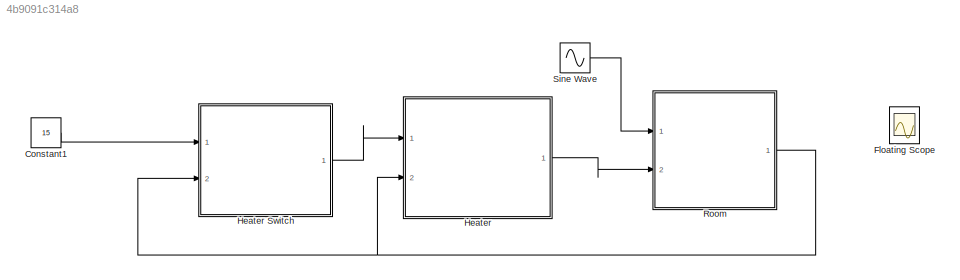
MODEL slx_4b9091c314a8
KIND model
CONFIG AbsTol = auto
CONFIG FixedStep = auto
CONFIG MaxStep = auto
CONFIG MinStep = auto
CONFIG RelTol = 1e-3
CONFIG SampleTimeConstraint = Unconstrained
CONFIG Solver = ode45
CONFIG SolverMode = Auto
CONFIG SolverName = ode45
CONFIG StartTime = 0.0
CONFIG StopTime = 24
WORKSPACE source: MAT-file member
WORKSPACE M_heater_air = 3600
BLOCK [Constant] Constant1
  Value = 15
BLOCK [Scope] Floating Scope
  Floating = on
  Ports = []
  ScopeSpecificationString = Simulink.scopes.TimeScopeBlockCfg('CurrentConfiguration', extmgr.ConfigurationSet(extmgr.Configuration('Core','General UI',true),extmgr.Configuration('Core','Source UI',true),extmgr.Configuration('Sources','WiredSimulink',true,'DataLoggingVariableName','ScopeData1'),extmgr.Configuration('Visuals','Time Domain',true,'SerializedDisplays',{struct('MinYLimReal','5','MaxYLimReal','25','YLabelReal','','...<+1399ch>
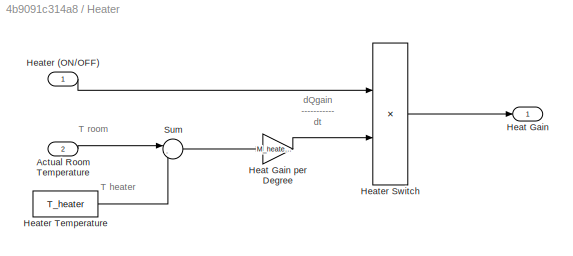
BLOCK [SubSystem] Heater
  Ports = [2, 1]
  RequestExecContextInheritance = off
  TreatAsAtomicUnit = on
  Variant = off
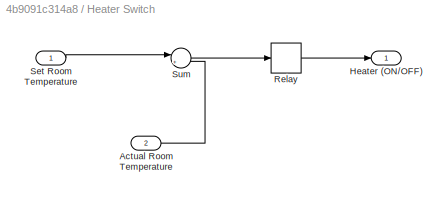
BLOCK [SubSystem] Heater Switch
  Ports = [2, 1]
  RequestExecContextInheritance = off
  TreatAsAtomicUnit = on
  Variant = off
BLOCK [Inport] Heater Switch/Actual Room Temperature
  IconDisplay = Port number
  Port = 2
BLOCK [Outport] Heater Switch/Heater (ON//OFF)
  IconDisplay = Port number
BLOCK [Relay] Heater Switch/Relay
  InputProcessing = Elements as channels (sample based)
  OffSwitchValue = -2
  OnSwitchValue = 2
BLOCK [Inport] Heater Switch/Set Room Temperature
  IconDisplay = Port number
BLOCK [Sum] Heater Switch/Sum
  IconShape = round
  InputSameDT = off
  Inputs = |+-
  OutDataTypeStr = Inherit: Inherit via internal rule
  Ports = [2, 1]
  SaturateOnIntegerOverflow = off
BLOCK [Inport] Heater/Actual Room Temperature
  IconDisplay = Port number
  Port = 2
BLOCK [Outport] Heater/Heat Gain
  IconDisplay = Port number
BLOCK [Gain] Heater/Heat Gain per Degree
  Gain = M_heater_air*c_air
  OutDataTypeStr = Inherit: Inherit via internal rule
  ParamDataTypeStr = Inherit: Inherit via internal rule
  SaturateOnIntegerOverflow = off
BLOCK [Inport] Heater/Heater (ON//OFF)
  IconDisplay = Port number
BLOCK [Product] Heater/Heater Switch
  InputSameDT = off
  OutDataTypeStr = Inherit: Inherit via internal rule
  Ports = [2, 1]
  RndMeth = Floor
  SaturateOnIntegerOverflow = off
BLOCK [Constant] Heater/Heater Temperature
  Value = T_heater
BLOCK [Sum] Heater/Sum
  IconShape = round
  InputSameDT = off
  Inputs = |-+
  OutDataTypeStr = Inherit: Inherit via internal rule
  Ports = [2, 1]
  SaturateOnIntegerOverflow = off
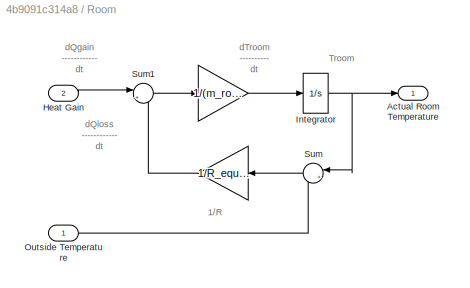
BLOCK [SubSystem] Room
  Ports = [2, 1]
  RequestExecContextInheritance = off
  Variant = off
BLOCK [Gain] Room/ 
  Gain = 1/R_equivalent
BLOCK [Gain] Room/  
  Gain = 1/(m_room_air*c_air)
BLOCK [Outport] Room/     Actual Room Temperature
  IconDisplay = Port number
BLOCK [Inport] Room/Heat Gain 
  IconDisplay = Port number
  Port = 2
BLOCK [Integrator] Room/Integrator
  InitialCondition = T_roomIC
  Ports = [1, 1]
BLOCK [Inport] Room/Outside Temperature
  IconDisplay = Port number
BLOCK [Sum] Room/Sum
  IconShape = round
  InputSameDT = off
  Inputs = |+-
  OutDataTypeStr = Inherit: Inherit via internal rule
  Ports = [2, 1]
  SaturateOnIntegerOverflow = off
BLOCK [Sum] Room/Sum1
  IconShape = round
  Inputs = |+-
  Ports = [2, 1]
BLOCK [Sin] Sine Wave
  Amplitude = 5
  Bias = 12
  Frequency = 2*pi/24
  Phase = 180
  Ports = [0, 1]
  SampleTime = 0
ANNOTATION Heater: T heater
ANNOTATION Heater: T room
ANNOTATION Heater: dQgain ----------- dt
ANNOTATION Room: 1/R
ANNOTATION Room: Troom
ANNOTATION Room: dQgain ------------ dt
ANNOTATION Room: dQloss ------------ dt
ANNOTATION Room: dTroom ---------- dt
LINE Constant1:1 -> Heater Switch:1
LINE Heater Switch/Actual Room Temperature:1 -> Heater Switch/Sum:2
LINE Heater Switch/Relay:1 -> Heater Switch/Heater (ON//OFF):1
LINE Heater Switch/Set Room Temperature:1 -> Heater Switch/Sum:1
LINE Heater Switch/Sum:1 -> Heater Switch/Relay:1
LINE Heater Switch:1 -> Heater:1
LINE Heater/Actual Room Temperature:1 -> Heater/Sum:1
LINE Heater/Heat Gain per Degree:1 -> Heater/Heater Switch:2
LINE Heater/Heater (ON//OFF):1 -> Heater/Heater Switch:1
LINE Heater/Heater Switch:1 -> Heater/Heat Gain:1
LINE Heater/Heater Temperature:1 -> Heater/Sum:2
LINE Heater/Sum:1 -> Heater/Heat Gain per Degree:1
LINE Heater:1 -> Room:2
LINE Room/  :1 -> Room/Integrator:1
LINE Room/ :1 -> Room/Sum1:2
LINE Room/Heat Gain :1 -> Room/Sum1:1
NET Room/Integrator:1 -> Room/     Actual Room Temperature:1, Room/Sum:1
LINE Room/Outside Temperature:1 -> Room/Sum:2
LINE Room/Sum1:1 -> Room/  :1
LINE Room/Sum:1 -> Room/ :1
NET Room:1 -> Heater Switch:2, Heater:2
LINE Sine Wave:1 -> Room:1
note: NET lines group one-source signal fan-out (src -> all destinations, sorted); 1:1 wires keep LINE
